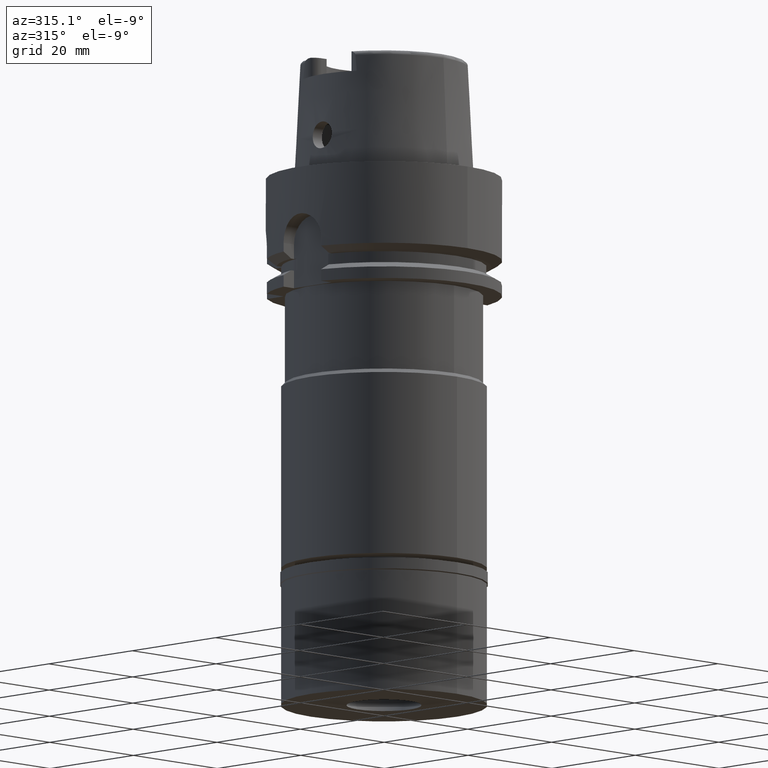
[diagram: clean part render]
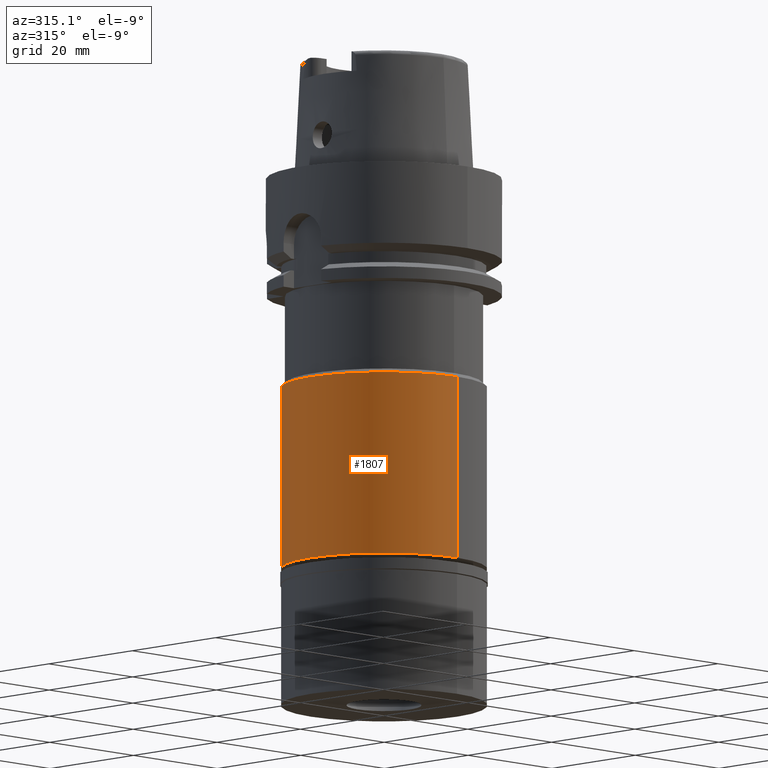
[diagram: same view with one face highlighted and labeled with its STEP entity id]
A machine part, auxiliary view. The second image highlights one B-rep face of the part: STEP entity #1807.
In plain terms, the highlighted cylindrical surface (partial cylindrical patch) has radius 17.5 mm, axis along (0, 0, -1).
Its self-contained STEP definition (entity closure, byte-faithful):
#1 = LINE ( 'NONE', #353, #4981 ) ;
#25 = DIRECTION ( 'NONE',  ( 0.0000000000000000000, 0.0000000000000000000, -1.000000000000000000 ) ) ;
#46 = LINE ( 'NONE', #3794, #1495 ) ;
#161 = CIRCLE ( 'NONE', #1488, 17.50000000000000000 ) ;
#164 = DIRECTION ( 'NONE',  ( 0.0000000000000000000, -1.000000000000000000, 0.0000000000000000000 ) ) ;
#353 = CARTESIAN_POINT ( 'NONE',  ( 0.0000000000000000000, 17.50000000000000000, -35.70000000000000284 ) ) ;
#669 = CARTESIAN_POINT ( 'NONE',  ( 0.0000000000000000000, 1.532829166152999980E-14, -66.69999999999998863 ) ) ;
#921 = DIRECTION ( 'NONE',  ( 0.0000000000000000000, -1.000000000000000000, 0.0000000000000000000 ) ) ;
#1174 = EDGE_CURVE ( 'NONE', #4690, #2140, #4492, .T. ) ;
#1488 = AXIS2_PLACEMENT_3D ( 'NONE', #2451, #2567, #921 ) ;
#1495 = VECTOR ( 'NONE', #25, 1000.000000000000000 ) ;
#1807 = ADVANCED_FACE ( 'NONE', ( #4335 ), #4360, .T. ) ;
#1826 = CARTESIAN_POINT ( 'NONE',  ( 0.0000000000000000000, 1.532829166152999980E-14, 25.16499999999999915 ) ) ;
#1839 = CARTESIAN_POINT ( 'NONE',  ( 0.0000000000000000000, -17.50000000000000000, -35.70000000000000284 ) ) ;
#2097 = VERTEX_POINT ( 'NONE', #3514 ) ;
#2140 = VERTEX_POINT ( 'NONE', #3433 ) ;
#2358 = ORIENTED_EDGE ( 'NONE', *, *, #3230, .T. ) ;
#2451 = CARTESIAN_POINT ( 'NONE',  ( 0.0000000000000000000, 0.0000000000000000000, -35.70000000000000284 ) ) ;
#2567 = DIRECTION ( 'NONE',  ( 0.0000000000000000000, 0.0000000000000000000, -1.000000000000000000 ) ) ;
#2663 = VERTEX_POINT ( 'NONE', #1839 ) ;
#2814 = DIRECTION ( 'NONE',  ( 0.0000000000000000000, 1.000000000000000000, 0.0000000000000000000 ) ) ;
#3183 = DIRECTION ( 'NONE',  ( 0.0000000000000000000, 0.0000000000000000000, 1.000000000000000000 ) ) ;
#3230 = EDGE_CURVE ( 'NONE', #2663, #2097, #161, .T. ) ;
#3366 = ORIENTED_EDGE ( 'NONE', *, *, #5210, .T. ) ;
#3433 = CARTESIAN_POINT ( 'NONE',  ( 0.0000000000000000000, -17.50000000000000000, -66.69999999999998863 ) ) ;
#3514 = CARTESIAN_POINT ( 'NONE',  ( 0.0000000000000000000, 17.50000000000000000, -35.70000000000000284 ) ) ;
#3794 = CARTESIAN_POINT ( 'NONE',  ( 0.0000000000000000000, -17.50000000000000000, -35.70000000000000284 ) ) ;
#4154 = EDGE_CURVE ( 'NONE', #2663, #2140, #46, .T. ) ;
#4335 = FACE_OUTER_BOUND ( 'NONE', #4589, .T. ) ;
#4343 = ORIENTED_EDGE ( 'NONE', *, *, #1174, .T. ) ;
#4360 = CYLINDRICAL_SURFACE ( 'NONE', #4588, 17.50000000000000000 ) ;
#4492 = CIRCLE ( 'NONE', #4852, 17.50000000000000000 ) ;
#4588 = AXIS2_PLACEMENT_3D ( 'NONE', #1826, #5213, #164 ) ;
#4589 = EDGE_LOOP ( 'NONE', ( #4343, #5029, #2358, #3366 ) ) ;
#4680 = CARTESIAN_POINT ( 'NONE',  ( 0.0000000000000000000, 17.50000000000000000, -66.69999999999998863 ) ) ;
#4690 = VERTEX_POINT ( 'NONE', #4680 ) ;
#4852 = AXIS2_PLACEMENT_3D ( 'NONE', #669, #3183, #2814 ) ;
#4981 = VECTOR ( 'NONE', #5347, 1000.000000000000000 ) ;
#5029 = ORIENTED_EDGE ( 'NONE', *, *, #4154, .F. ) ;
#5210 = EDGE_CURVE ( 'NONE', #2097, #4690, #1, .T. ) ;
#5213 = DIRECTION ( 'NONE',  ( 0.0000000000000000000, 0.0000000000000000000, -1.000000000000000000 ) ) ;
#5347 = DIRECTION ( 'NONE',  ( 0.0000000000000000000, 0.0000000000000000000, -1.000000000000000000 ) ) ;